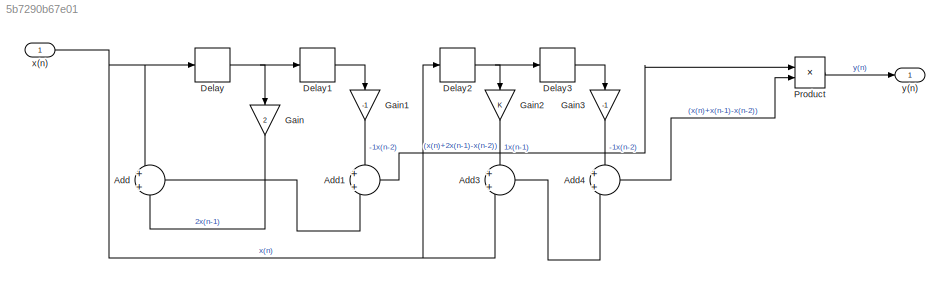
MODEL slx_5b7290b67e01
KIND model
CONFIG AbsTol = auto
CONFIG EnableMultiTasking = off
CONFIG FixedStep = 0.2
CONFIG MaxStep = auto
CONFIG MinStep = auto
CONFIG RelTol = 1e-3
CONFIG SampleTimeConstraint = Unconstrained
CONFIG SolverName = FixedStepAuto
CONFIG StartTime = 0.0
CONFIG StopTime = 10.0
BLOCK [Sum] Add
  Ports = [2, 1]
BLOCK [Sum] Add1
  Ports = [2, 1]
BLOCK [Sum] Add3
  Ports = [2, 1]
BLOCK [Sum] Add4
  Ports = [2, 1]
BLOCK [Delay] Delay
  DelayLength = 1
  InputPortMap = u0
  Ports = [1, 1]
BLOCK [Delay] Delay1
  DelayLength = 1
  InputPortMap = u0
  Ports = [1, 1]
BLOCK [Delay] Delay2
  DelayLength = 1
  InputPortMap = u0
  Ports = [1, 1]
BLOCK [Delay] Delay3
  DelayLength = 1
  InputPortMap = u0
  Ports = [1, 1]
BLOCK [Gain] Gain
  Gain = 2
  NameLocation = left
BLOCK [Gain] Gain1
  Gain = -1
  NameLocation = left
BLOCK [Gain] Gain2
  NameLocation = left
BLOCK [Gain] Gain3
  Gain = -1
  NameLocation = left
BLOCK [Product] Product
  Ports = [2, 1]
BLOCK [Inport] x(n)
  OutDataTypeStr = double
  PortDimensions = 1
  SampleTime = [0.20000000000000001,0]
  SamplingMode = Sample based
  SignalType = real
BLOCK [Outport] y(n)
  OutDataTypeStr = double
  PortDimensions = 1
  SampleTime = [0.20000000000000001,0]
  SamplingMode = Sample based
  SignalType = real
LINE Add1:1 -> Product:1
LINE Add3:1 -> Add4:2
LINE Add4:1 -> Product:2
LINE Add:1 -> Add1:2
LINE Delay1:1 -> Gain1:1
NET Delay2:1 -> Delay3:1, Gain2:1
LINE Delay3:1 -> Gain3:1
NET Delay:1 -> Delay1:1, Gain:1
LINE Gain1:1 -> Add1:1
LINE Gain2:1 -> Add3:1
LINE Gain3:1 -> Add4:1
LINE Gain:1 -> Add:2
LINE Product:1 -> y(n):1
NET x(n):1 -> Add3:2, Add:1, Delay2:1, Delay:1
note: NET lines group one-source signal fan-out (src -> all destinations, sorted); 1:1 wires keep LINE
